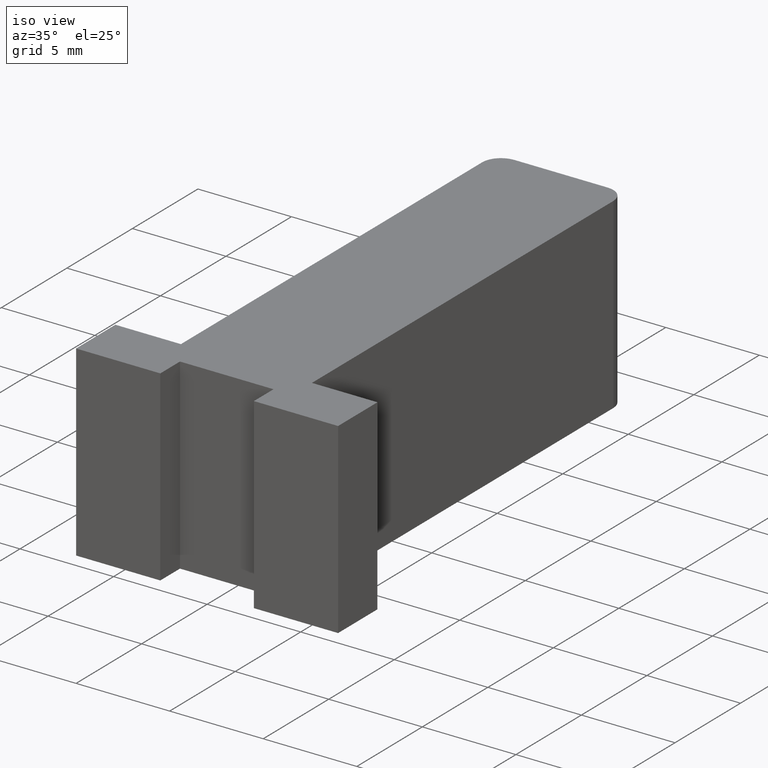
[diagram: clean part render]
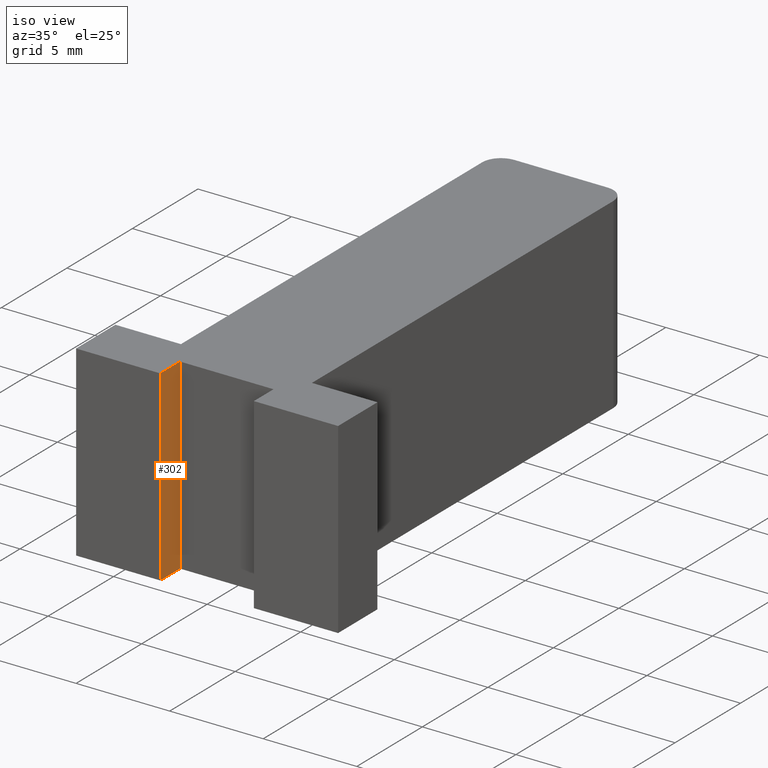
[diagram: same view with one face highlighted and labeled with its STEP entity id]
A machine part, iso view. The second image highlights one B-rep face of the part: STEP entity #302.
In plain terms, the highlighted planar face has unit normal (1, 0, 0).
Its self-contained STEP definition (entity closure, byte-faithful):
#22=FACE_OUTER_BOUND('',#38,.T.);
#38=EDGE_LOOP('',(#223,#224,#225,#226));
#59=LINE('',#450,#97);
#71=LINE('',#477,#109);
#72=LINE('',#480,#110);
#73=LINE('',#481,#111);
#97=VECTOR('',#366,10.);
#109=VECTOR('',#386,10.);
#110=VECTOR('',#389,10.);
#111=VECTOR('',#390,10.);
#135=VERTEX_POINT('',#447);
#136=VERTEX_POINT('',#449);
#147=VERTEX_POINT('',#475);
#148=VERTEX_POINT('',#479);
#163=EDGE_CURVE('',#136,#135,#59,.T.);
#177=EDGE_CURVE('',#147,#135,#71,.T.);
#178=EDGE_CURVE('',#147,#148,#72,.T.);
#179=EDGE_CURVE('',#148,#136,#73,.T.);
#223=ORIENTED_EDGE('',*,*,#178,.T.);
#224=ORIENTED_EDGE('',*,*,#179,.T.);
#225=ORIENTED_EDGE('',*,*,#163,.T.);
#226=ORIENTED_EDGE('',*,*,#177,.F.);
#288=PLANE('',#343);
#302=ADVANCED_FACE('',(#22),#288,.T.);
#343=AXIS2_PLACEMENT_3D('',#478,#387,#388);
#366=DIRECTION('',(-7.4014868308344E-16,1.,0.));
#386=DIRECTION('',(0.,0.,-1.));
#387=DIRECTION('center_axis',(1.,7.4014868308344E-16,0.));
#388=DIRECTION('ref_axis',(0.,0.,-1.));
#389=DIRECTION('',(7.4014868308344E-16,-1.,0.));
#390=DIRECTION('',(0.,0.,-1.));
#447=CARTESIAN_POINT('',(-2.5,1.5,-5.));
#449=CARTESIAN_POINT('',(-2.5,1.73552553625875E-15,-5.));
#450=CARTESIAN_POINT('',(-2.5,1.5,-5.));
#475=CARTESIAN_POINT('',(-2.5,1.5,5.));
#477=CARTESIAN_POINT('',(-2.5,1.5,0.));
#478=CARTESIAN_POINT('Origin',(-2.5,1.5,0.));
#479=CARTESIAN_POINT('',(-2.5,1.73552553625875E-15,5.));
#480=CARTESIAN_POINT('',(-2.5,1.5,5.));
#481=CARTESIAN_POINT('',(-2.5,1.73552553625875E-15,0.));